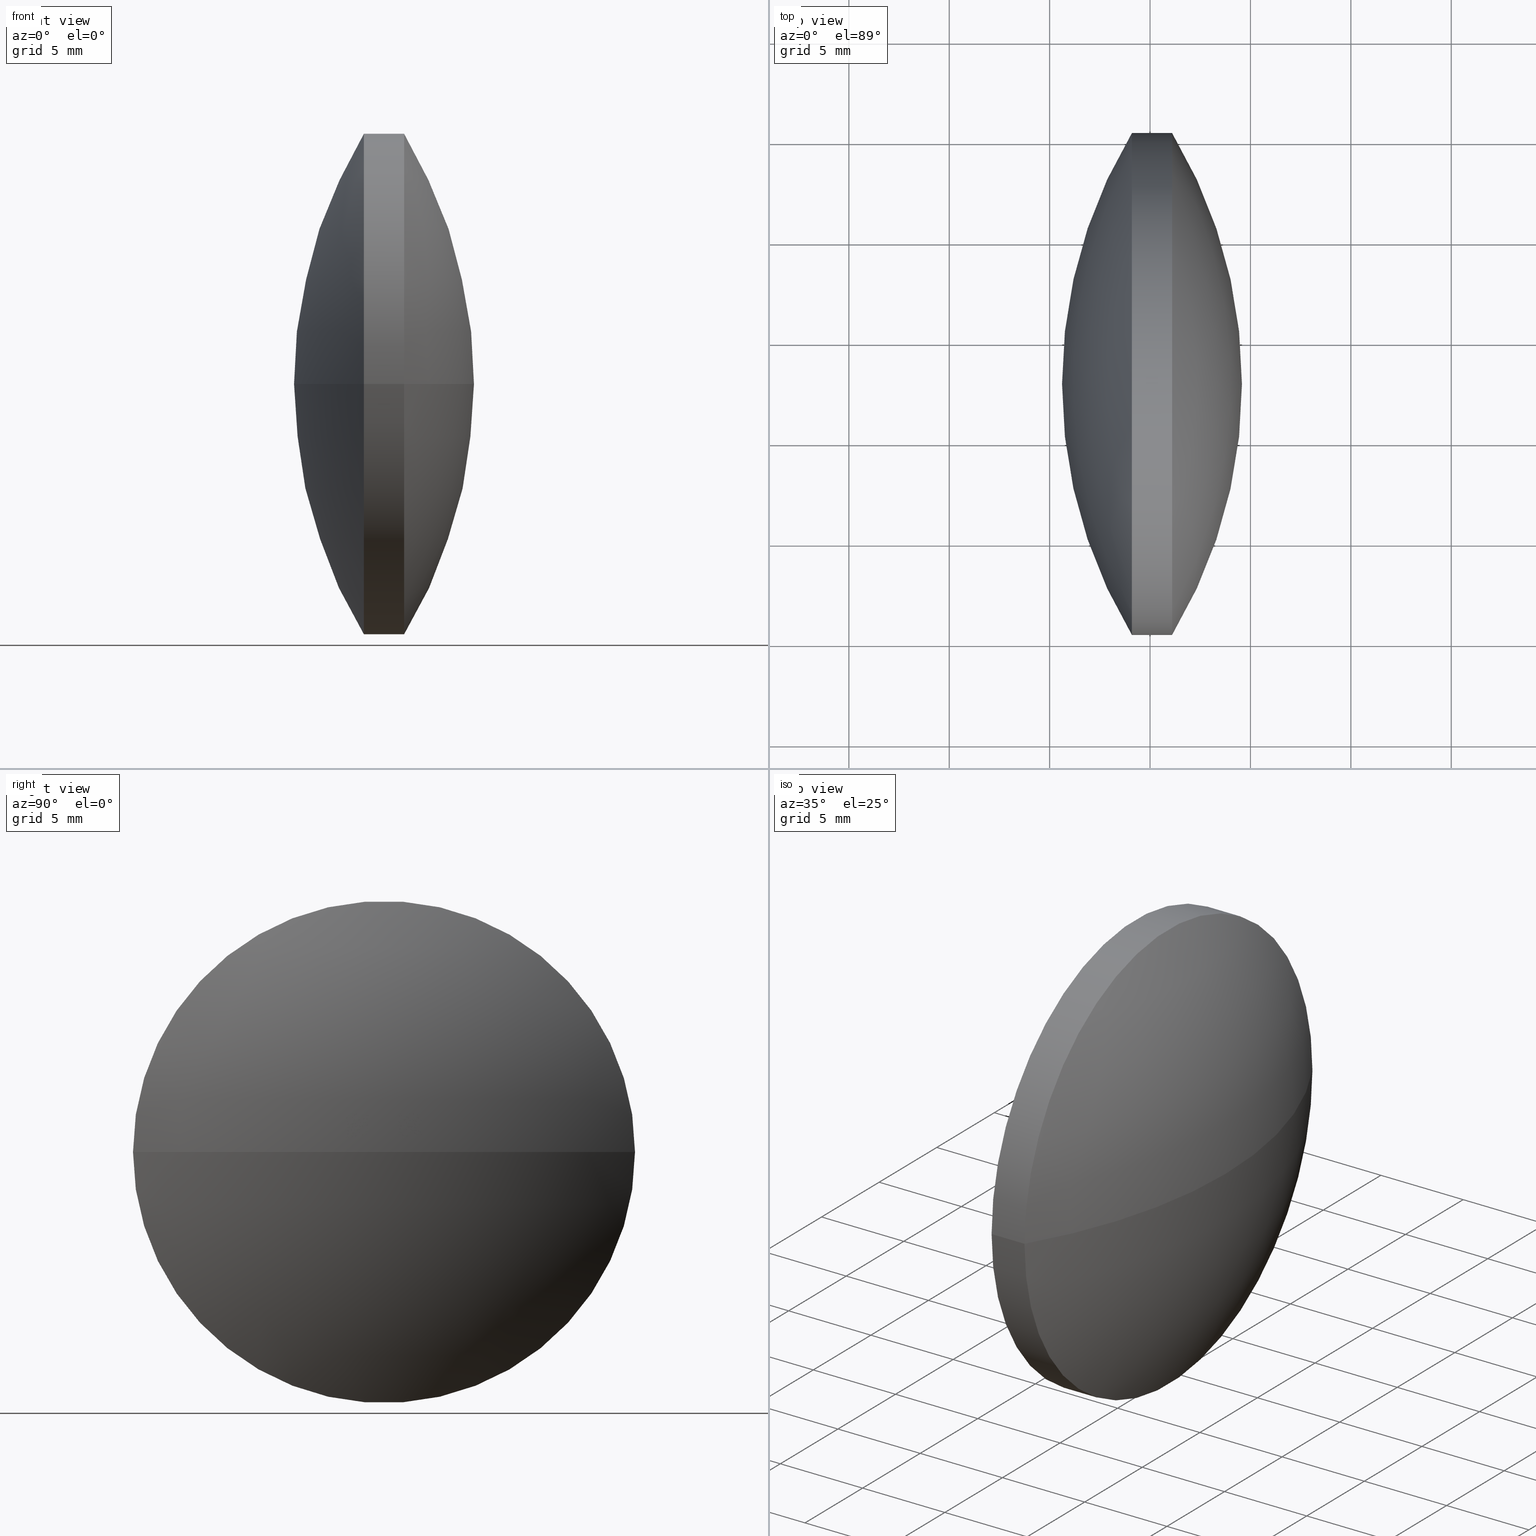
[diagram: canonical four-view strip — front | top / right | iso, engineering-drawing reading convention]
A machine part, canonical four-view strip (front | top / right | iso — engineering-drawing reading convention). The complete STEP part file that produces these views, byte-faithful:
ISO-10303-21;
HEADER;
FILE_DESCRIPTION (( 'STEP AP203' ),
    '1' );
FILE_NAME ('110016.STEP',
    '2019-06-25T05:55:41',
    ( '' ),
    ( '' ),
    'SwSTEP 2.0',
    'SolidWorks 2016',
    '' );
FILE_SCHEMA (( 'CONFIG_CONTROL_DESIGN' ));
ENDSEC;

DATA;
#1 = APPROVAL_ROLE ( '' ) ;
#2 = ADVANCED_FACE ( 'NONE', ( #23 ), #233, .T. ) ;
#3 = PRODUCT_DEFINITION ( 'δ֪', '', #25, #156 ) ;
#4 = APPROVAL_ROLE ( '' ) ;
#5 = CALENDAR_DATE ( 2019, 25, 6 ) ;
#6 = PERSON_AND_ORGANIZATION ( #239, #261 ) ;
#7 = ORIENTED_EDGE ( 'NONE', *, *, #198, .F. ) ;
#8 = ADVANCED_FACE ( 'NONE', ( #282 ), #161, .T. ) ;
#9 = LOCAL_TIME ( 13, 55, 41.00000000000000000, #32 ) ;
#10 = DIRECTION ( 'NONE',  ( 1.147412374197123200E-015, 1.000000000000000000, 0.0000000000000000000 ) ) ;
#11 = CIRCLE ( 'NONE', #292, 24.18971264367814200 ) ;
#12 = VERTEX_POINT ( 'NONE', #242 ) ;
#13 = PRODUCT_RELATED_PRODUCT_CATEGORY ( 'detail', '', ( #283 ) ) ;
#14 = DIRECTION ( 'NONE',  ( -1.000000000000000000, 1.426066712043499300E-015, -0.0000000000000000000 ) ) ;
#15 = DATE_AND_TIME ( #26, #153 ) ;
#16 = ORIENTED_EDGE ( 'NONE', *, *, #28, .T. ) ;
#17 = CC_DESIGN_APPROVAL ( #281, ( #99 ) ) ;
#18 = COORDINATED_UNIVERSAL_TIME_OFFSET ( 8, 0, .AHEAD. ) ;
#19 = PERSON_AND_ORGANIZATION ( #239, #261 ) ;
#20 = DATE_AND_TIME ( #185, #91 ) ;
#21 = PRODUCT_DEFINITION ( 'δ֪', '', #270, #155 ) ;
#22 = VERTEX_POINT ( 'NONE', #286 ) ;
#23 = FACE_OUTER_BOUND ( 'NONE', #172, .T. ) ;
#24 = APPROVAL_STATUS ( 'not_yet_approved' ) ;
#25 = PRODUCT_DEFINITION_FORMATION_WITH_SPECIFIED_SOURCE ( '�κ�', '', #146, .NOT_KNOWN. ) ;
#26 = CALENDAR_DATE ( 2019, 25, 6 ) ;
#27 = VECTOR ( 'NONE', #79, 1000.000000000000000 ) ;
#28 = EDGE_CURVE ( 'NONE', #243, #12, #36, .T. ) ;
#29 = PERSON_AND_ORGANIZATION_ROLE ( 'creator' ) ;
#30 = EDGE_CURVE ( 'NONE', #12, #98, #92, .T. ) ;
#31 = APPROVAL ( #24, 'δָ��' ) ;
#32 = COORDINATED_UNIVERSAL_TIME_OFFSET ( 8, 0, .AHEAD. ) ;
#33 = SPHERICAL_SURFACE ( 'NONE', #43, 24.18971264367814900 ) ;
#34 = DIRECTION ( 'NONE',  ( -1.000000000000000000, 1.426066712043499300E-015, -0.0000000000000000000 ) ) ;
#35 = PERSON_AND_ORGANIZATION ( #239, #261 ) ;
#36 = CIRCLE ( 'NONE', #298, 24.18971264367815600 ) ;
#37 = VERTEX_POINT ( 'NONE', #145 ) ;
#38 = DIRECTION ( 'NONE',  ( -1.110223024625159300E-015, -1.000000000000000000, 0.0000000000000000000 ) ) ;
#39 = CC_DESIGN_PERSON_AND_ORGANIZATION_ASSIGNMENT ( #274, #117, ( #270 ) ) ;
#40 = CARTESIAN_POINT ( 'NONE',  ( 104.8063600596842700, 47.85050494407929700, 0.0000000000000000000 ) ) ;
#41 = LOCAL_TIME ( 13, 55, 41.00000000000000000, #53 ) ;
#42 = VERTEX_POINT ( 'NONE', #218 ) ;
#43 = AXIS2_PLACEMENT_3D ( 'NONE', #244, #175, #245 ) ;
#44 = DIRECTION ( 'NONE',  ( 0.0000000000000000000, 0.0000000000000000000, 1.000000000000000000 ) ) ;
#45 = APPLICATION_PROTOCOL_DEFINITION ( 'international standard', 'config_control_design', 1994, #167 ) ;
#46 = CC_DESIGN_PERSON_AND_ORGANIZATION_ASSIGNMENT ( #271, #72, ( #25 ) ) ;
#47 = MECHANICAL_CONTEXT ( 'NONE', #255, 'mechanical' ) ;
#48 = DATE_TIME_ROLE ( 'classification_date' ) ;
#49 = LOCAL_TIME ( 13, 55, 41.00000000000000000, #293 ) ;
#50 = ADVANCED_FACE ( 'NONE', ( #268 ), #33, .T. ) ;
#51 = AXIS2_PLACEMENT_3D ( 'NONE', #123, #226, #288 ) ;
#52 = PERSON_AND_ORGANIZATION ( #239, #261 ) ;
#53 = COORDINATED_UNIVERSAL_TIME_OFFSET ( 8, 0, .AHEAD. ) ;
#54 = DIRECTION ( 'NONE',  ( 0.0000000000000000000, 0.0000000000000000000, -1.000000000000000000 ) ) ;
#55 = DIRECTION ( 'NONE',  ( 0.0000000000000000000, 1.000000000000000000, 1.224646799147352700E-016 ) ) ;
#56 = ORIENTED_EDGE ( 'NONE', *, *, #30, .F. ) ;
#57 = ORIENTED_EDGE ( 'NONE', *, *, #28, .F. ) ;
#58 = CARTESIAN_POINT ( 'NONE',  ( 76.62621286149057200, 47.85050494407931900, 0.0000000000000000000 ) ) ;
#59 = CC_DESIGN_DATE_AND_TIME_ASSIGNMENT ( #152, #48, ( #122 ) ) ;
#60 = DIRECTION ( 'NONE',  ( 1.746428034274661700E-031, 1.224646799147353200E-016, -1.000000000000000000 ) ) ;
#61 = PERSON_AND_ORGANIZATION ( #239, #261 ) ;
#62 = MANIFOLD_SOLID_BREP ( '��ת1', #196 ) ;
#63 = DIRECTION ( 'NONE',  ( 0.0000000000000000000, 0.0000000000000000000, 1.000000000000000000 ) ) ;
#64 = LOCAL_TIME ( 13, 55, 41.00000000000000000, #128 ) ;
#65 = AXIS2_PLACEMENT_3D ( 'NONE', #40, #54, #10 ) ;
#66 = ORIENTED_EDGE ( 'NONE', *, *, #238, .T. ) ;
#67 = CARTESIAN_POINT ( 'NONE',  ( 0.0000000000000000000, 0.0000000000000000000, 0.0000000000000000000 ) ) ;
#68 = DIRECTION ( 'NONE',  ( -1.000000000000000000, 1.426066712043499300E-015, -0.0000000000000000000 ) ) ;
#69 = PERSON_AND_ORGANIZATION_ROLE ( 'classification_officer' ) ;
#70 = PERSON_AND_ORGANIZATION_ROLE ( 'creator' ) ;
#71 = CC_DESIGN_PERSON_AND_ORGANIZATION_ASSIGNMENT ( #97, #173, ( #3 ) ) ;
#72 = PERSON_AND_ORGANIZATION_ROLE ( 'creator' ) ;
#73 = ADVANCED_FACE ( 'NONE', ( #154 ), #207, .T. ) ;
#74 = APPROVAL_STATUS ( 'not_yet_approved' ) ;
#75 = EDGE_LOOP ( 'NONE', ( #181, #143, #208, #130 ) ) ;
#76 = APPROVAL_STATUS ( 'not_yet_approved' ) ;
#77 = ADVANCED_FACE ( 'NONE', ( #126 ), #247, .T. ) ;
#78 = APPROVAL ( #74, 'δָ��' ) ;
#79 = DIRECTION ( 'NONE',  ( -1.000000000000000000, 1.426066712043499300E-015, -0.0000000000000000000 ) ) ;
#80 = APPROVAL_PERSON_ORGANIZATION ( #138, #281, #1 ) ;
#81 = CARTESIAN_POINT ( 'NONE',  ( 84.09664741600607800, 35.35050494407936100, -1.530808498934187000E-015 ) ) ;
#82 = ORIENTED_EDGE ( 'NONE', *, *, #238, .F. ) ;
#83 = APPROVAL_PERSON_ORGANIZATION ( #142, #177, #186 ) ;
#84 = CC_DESIGN_APPROVAL ( #78, ( #270 ) ) ;
#85 = DIRECTION ( 'NONE',  ( 1.147412374197123200E-015, 1.000000000000000000, 0.0000000000000000000 ) ) ;
#86 = PRODUCT_DEFINITION_SHAPE ( 'NONE', 'NONE',  #21 ) ;
#87 = EDGE_CURVE ( 'NONE', #22, #37, #211, .T. ) ;
#88 = PERSON_AND_ORGANIZATION ( #239, #261 ) ;
#89 = DIRECTION ( 'NONE',  ( 1.000000000000000000, 0.0000000000000000000, 0.0000000000000000000 ) ) ;
#90 = CC_DESIGN_DATE_AND_TIME_ASSIGNMENT ( #265, #263, ( #21 ) ) ;
#91 = LOCAL_TIME ( 13, 55, 41.00000000000000000, #18 ) ;
#92 = LINE ( 'NONE', #124, #27 ) ;
#93 = CARTESIAN_POINT ( 'NONE',  ( 84.09664741600609300, 47.85050494407930400, 0.0000000000000000000 ) ) ;
#94 =( GEOMETRIC_REPRESENTATION_CONTEXT ( 3 ) GLOBAL_UNCERTAINTY_ASSIGNED_CONTEXT ( ( #151 ) ) GLOBAL_UNIT_ASSIGNED_CONTEXT ( ( #111, #299, #133 ) ) REPRESENTATION_CONTEXT ( 'NONE', 'WORKASPACE' ) );
#95 = ORIENTED_EDGE ( 'NONE', *, *, #225, .T. ) ;
#96 = APPROVAL_STATUS ( 'not_yet_approved' ) ;
#97 = PERSON_AND_ORGANIZATION ( #239, #261 ) ;
#98 = VERTEX_POINT ( 'NONE', #81 ) ;
#99 = SECURITY_CLASSIFICATION ( '', '', #214 ) ;
#100 = LOCAL_TIME ( 13, 55, 41.00000000000000000, #273 ) ;
#101 = CARTESIAN_POINT ( 'NONE',  ( 76.62621286149058600, 60.35050494407928300, 1.530808498934187800E-015 ) ) ;
#102 = DATE_AND_TIME ( #5, #49 ) ;
#103 = CC_DESIGN_APPROVAL ( #31, ( #25 ) ) ;
#104 = DIRECTION ( 'NONE',  ( -1.110223024625159300E-015, -1.000000000000000000, 0.0000000000000000000 ) ) ;
#105 = LOCAL_TIME ( 13, 55, 41.00000000000000000, #129 ) ;
#106 = DIRECTION ( 'NONE',  ( 0.0000000000000000000, 1.000000000000000000, 1.224646799147353000E-016 ) ) ;
#107 = PRODUCT_RELATED_PRODUCT_CATEGORY ( 'detail', '', ( #146 ) ) ;
#108 = ORIENTED_EDGE ( 'NONE', *, *, #141, .F. ) ;
#109 = DATE_AND_TIME ( #249, #100 ) ;
#110 = ORIENTED_EDGE ( 'NONE', *, *, #87, .T. ) ;
#111 =( LENGTH_UNIT ( ) NAMED_UNIT ( * ) SI_UNIT ( .MILLI., .METRE. ) );
#112 = CC_DESIGN_PERSON_AND_ORGANIZATION_ASSIGNMENT ( #6, #277, ( #283 ) ) ;
#113 = DATE_AND_TIME ( #201, #179 ) ;
#114 = ADVANCED_BREP_SHAPE_REPRESENTATION ( '110016', ( #62, #203 ), #94 ) ;
#115 = PERSON_AND_ORGANIZATION_ROLE ( 'design_owner' ) ;
#116 = APPROVAL_PERSON_ORGANIZATION ( #35, #31, #191 ) ;
#117 = PERSON_AND_ORGANIZATION_ROLE ( 'design_supplier' ) ;
#118 = CC_DESIGN_PERSON_AND_ORGANIZATION_ASSIGNMENT ( #61, #115, ( #146 ) ) ;
#119 = PERSON_AND_ORGANIZATION_ROLE ( 'classification_officer' ) ;
#120 = SECURITY_CLASSIFICATION_LEVEL ( 'unclassified' ) ;
#121 = APPROVAL_DATE_TIME ( #15, #78 ) ;
#122 = SECURITY_CLASSIFICATION ( '', '', #120 ) ;
#123 = CARTESIAN_POINT ( 'NONE',  ( 65.38693477232793300, 47.85050494407931900, 0.0000000000000000000 ) ) ;
#124 = CARTESIAN_POINT ( 'NONE',  ( 76.62621286149055800, 35.35050494407934700, 0.0000000000000000000 ) ) ;
#125 = CALENDAR_DATE ( 2019, 25, 6 ) ;
#126 = FACE_OUTER_BOUND ( 'NONE', #215, .T. ) ;
#127 = EDGE_CURVE ( 'NONE', #22, #12, #202, .T. ) ;
#128 = COORDINATED_UNIVERSAL_TIME_OFFSET ( 8, 0, .AHEAD. ) ;
#129 = COORDINATED_UNIVERSAL_TIME_OFFSET ( 8, 0, .AHEAD. ) ;
#130 = ORIENTED_EDGE ( 'NONE', *, *, #206, .F. ) ;
#131 = CC_DESIGN_APPROVAL ( #177, ( #21 ) ) ;
#132 = CC_DESIGN_PERSON_AND_ORGANIZATION_ASSIGNMENT ( #19, #193, ( #25 ) ) ;
#133 =( NAMED_UNIT ( * ) SI_UNIT ( $, .STERADIAN. ) SOLID_ANGLE_UNIT ( ) );
#134 = SHAPE_DEFINITION_REPRESENTATION ( #217, #114 ) ;
#135 = CIRCLE ( 'NONE', #252, 24.18971264367814900 ) ;
#136 = DIRECTION ( 'NONE',  ( 1.000000000000000000, 0.0000000000000000000, 0.0000000000000000000 ) ) ;
#137 = APPROVAL_STATUS ( 'not_yet_approved' ) ;
#138 = PERSON_AND_ORGANIZATION ( #239, #261 ) ;
#139 = DATE_TIME_ROLE ( 'creation_date' ) ;
#140 = APPROVAL ( #236, 'δָ��' ) ;
#141 = EDGE_CURVE ( 'NONE', #98, #42, #135, .T. ) ;
#142 = PERSON_AND_ORGANIZATION ( #239, #261 ) ;
#143 = ORIENTED_EDGE ( 'NONE', *, *, #127, .T. ) ;
#144 = AXIS2_PLACEMENT_3D ( 'NONE', #158, #250, #200 ) ;
#145 = CARTESIAN_POINT ( 'NONE',  ( 84.09664741600610700, 60.35050494407926900, 0.0000000000000000000 ) ) ;
#146 = PRODUCT ( '110016', '110016', '', ( #47 ) ) ;
#147 = COORDINATED_UNIVERSAL_TIME_OFFSET ( 8, 0, .AHEAD. ) ;
#148 = DIRECTION ( 'NONE',  ( -1.000000000000000000, 1.426066712043499300E-015, -0.0000000000000000000 ) ) ;
#149 = FACE_OUTER_BOUND ( 'NONE', #75, .T. ) ;
#150 = ORIENTED_EDGE ( 'NONE', *, *, #127, .F. ) ;
#151 = UNCERTAINTY_MEASURE_WITH_UNIT (LENGTH_MEASURE( 1.000000000000000100E-005 ), #111, 'distance_accuracy_value', 'NONE');
#152 = DATE_AND_TIME ( #212, #157 ) ;
#153 = LOCAL_TIME ( 13, 55, 41.00000000000000000, #147 ) ;
#154 = FACE_OUTER_BOUND ( 'NONE', #253, .T. ) ;
#155 = DESIGN_CONTEXT ( 'detailed design', #167, 'design' ) ;
#156 = DESIGN_CONTEXT ( 'detailed design', #237, 'design' ) ;
#157 = LOCAL_TIME ( 13, 55, 41.00000000000000000, #275 ) ;
#158 = CARTESIAN_POINT ( 'NONE',  ( 86.09664741600609300, 47.85050494407930400, 0.0000000000000000000 ) ) ;
#159 = CIRCLE ( 'NONE', #163, 12.49999999999997000 ) ;
#160 = CC_DESIGN_APPROVAL ( #213, ( #122 ) ) ;
#161 = CYLINDRICAL_SURFACE ( 'NONE', #235, 12.49999999999997000 ) ;
#162 = DIRECTION ( 'NONE',  ( 1.000000000000000000, 0.0000000000000000000, 0.0000000000000000000 ) ) ;
#163 = AXIS2_PLACEMENT_3D ( 'NONE', #223, #34, #104 ) ;
#164 = CARTESIAN_POINT ( 'NONE',  ( 0.0000000000000000000, 0.0000000000000000000, 0.0000000000000000000 ) ) ;
#165 = EDGE_CURVE ( 'NONE', #243, #22, #11, .T. ) ;
#166 = APPLICATION_PROTOCOL_DEFINITION ( 'international standard', 'config_control_design', 1994, #300 ) ;
#167 = APPLICATION_CONTEXT ( 'configuration controlled 3d designs of mechanical parts and assemblies' ) ;
#168 = AXIS2_PLACEMENT_3D ( 'NONE', #183, #228, #89 ) ;
#169 = APPROVAL_DATE_TIME ( #227, #140 ) ;
#170 = DATE_TIME_ROLE ( 'classification_date' ) ;
#171 = CYLINDRICAL_SURFACE ( 'NONE', #176, 12.49999999999997000 ) ;
#172 = EDGE_LOOP ( 'NONE', ( #108, #66, #95 ) ) ;
#173 = PERSON_AND_ORGANIZATION_ROLE ( 'creator' ) ;
#174 = DATE_AND_TIME ( #184, #64 ) ;
#175 = DIRECTION ( 'NONE',  ( 0.0000000000000000000, 0.0000000000000000000, -1.000000000000000000 ) ) ;
#176 = AXIS2_PLACEMENT_3D ( 'NONE', #58, #68, #234 ) ;
#177 = APPROVAL ( #137, 'δָ��' ) ;
#178 = CC_DESIGN_DATE_AND_TIME_ASSIGNMENT ( #109, #139, ( #3 ) ) ;
#179 = LOCAL_TIME ( 13, 55, 41.00000000000000000, #210 ) ;
#180 = DIRECTION ( 'NONE',  ( 1.746428034274661700E-031, 1.224646799147353200E-016, -1.000000000000000000 ) ) ;
#181 = ORIENTED_EDGE ( 'NONE', *, *, #87, .F. ) ;
#182 = CARTESIAN_POINT ( 'NONE',  ( 104.8063600596842700, 47.85050494407929700, 0.0000000000000000000 ) ) ;
#183 = CARTESIAN_POINT ( 'NONE',  ( 104.8063600596842700, 47.85050494407929700, 0.0000000000000000000 ) ) ;
#184 = CALENDAR_DATE ( 2019, 25, 6 ) ;
#185 = CALENDAR_DATE ( 2019, 25, 6 ) ;
#186 = APPROVAL_ROLE ( '' ) ;
#187 = ORIENTED_EDGE ( 'NONE', *, *, #225, .F. ) ;
#188 = CC_DESIGN_PERSON_AND_ORGANIZATION_ASSIGNMENT ( #232, #70, ( #21 ) ) ;
#189 = ORIENTED_EDGE ( 'NONE', *, *, #198, .T. ) ;
#190 = CC_DESIGN_APPROVAL ( #140, ( #3 ) ) ;
#191 = APPROVAL_ROLE ( '' ) ;
#192 = EDGE_LOOP ( 'NONE', ( #262, #16, #150 ) ) ;
#193 = PERSON_AND_ORGANIZATION_ROLE ( 'design_supplier' ) ;
#194 = AXIS2_PLACEMENT_3D ( 'NONE', #93, #257, #258 ) ;
#195 = DATE_AND_TIME ( #272, #41 ) ;
#196 = CLOSED_SHELL ( 'NONE', ( #8, #50, #77, #2, #73, #264 ) ) ;
#197 = CC_DESIGN_PERSON_AND_ORGANIZATION_ASSIGNMENT ( #289, #119, ( #122 ) ) ;
#198 = EDGE_CURVE ( 'NONE', #12, #22, #159, .T. ) ;
#199 = DIRECTION ( 'NONE',  ( -1.110223024625159300E-015, -1.000000000000000000, 0.0000000000000000000 ) ) ;
#200 = DIRECTION ( 'NONE',  ( -1.110223024625159300E-015, -1.000000000000000000, 0.0000000000000000000 ) ) ;
#201 = CALENDAR_DATE ( 2019, 25, 6 ) ;
#202 = CIRCLE ( 'NONE', #144, 12.49999999999997000 ) ;
#203 = AXIS2_PLACEMENT_3D ( 'NONE', #67, #63, #136 ) ;
#204 = APPROVAL_PERSON_ORGANIZATION ( #52, #213, #304 ) ;
#205 = DIRECTION ( 'NONE',  ( 1.000000000000000000, 0.0000000000000000000, 0.0000000000000000000 ) ) ;
#206 = EDGE_CURVE ( 'NONE', #37, #98, #302, .T. ) ;
#207 = SPHERICAL_SURFACE ( 'NONE', #51, 24.18971264367814900 ) ;
#208 = ORIENTED_EDGE ( 'NONE', *, *, #30, .T. ) ;
#209 = CC_DESIGN_PERSON_AND_ORGANIZATION_ASSIGNMENT ( #256, #69, ( #99 ) ) ;
#210 = COORDINATED_UNIVERSAL_TIME_OFFSET ( 8, 0, .AHEAD. ) ;
#211 = LINE ( 'NONE', #101, #266 ) ;
#212 = CALENDAR_DATE ( 2019, 25, 6 ) ;
#213 = APPROVAL ( #76, 'δָ��' ) ;
#214 = SECURITY_CLASSIFICATION_LEVEL ( 'unclassified' ) ;
#215 = EDGE_LOOP ( 'NONE', ( #276, #303, #187 ) ) ;
#216 = APPLICATION_PROTOCOL_DEFINITION ( 'international standard', 'config_control_design', 1994, #255 ) ;
#217 = PRODUCT_DEFINITION_SHAPE ( 'NONE', 'NONE',  #3 ) ;
#218 = CARTESIAN_POINT ( 'NONE',  ( 80.61664741600613100, 47.85050494407933300, 0.0000000000000000000 ) ) ;
#219 = CARTESIAN_POINT ( 'NONE',  ( 76.62621286149057200, 47.85050494407931900, 0.0000000000000000000 ) ) ;
#220 = EDGE_LOOP ( 'NONE', ( #189, #110, #82, #56 ) ) ;
#221 = CC_DESIGN_PERSON_AND_ORGANIZATION_ASSIGNMENT ( #88, #29, ( #270 ) ) ;
#222 = AXIS2_PLACEMENT_3D ( 'NONE', #267, #287, #85 ) ;
#223 = CARTESIAN_POINT ( 'NONE',  ( 86.09664741600609300, 47.85050494407930400, 0.0000000000000000000 ) ) ;
#224 = APPROVAL_DATE_TIME ( #102, #31 ) ;
#225 = EDGE_CURVE ( 'NONE', #37, #42, #279, .T. ) ;
#226 = DIRECTION ( 'NONE',  ( 0.0000000000000000000, 0.0000000000000000000, -1.000000000000000000 ) ) ;
#227 = DATE_AND_TIME ( #285, #105 ) ;
#228 = DIRECTION ( 'NONE',  ( 0.0000000000000000000, 0.0000000000000000000, 1.000000000000000000 ) ) ;
#229 = CARTESIAN_POINT ( 'NONE',  ( 89.57664741600606800, 47.85050494407928300, 0.0000000000000000000 ) ) ;
#230 = AXIS2_PLACEMENT_3D ( 'NONE', #291, #14, #38 ) ;
#231 = APPROVAL_DATE_TIME ( #174, #213 ) ;
#232 = PERSON_AND_ORGANIZATION ( #239, #261 ) ;
#233 = SPHERICAL_SURFACE ( 'NONE', #65, 24.18971264367814900 ) ;
#234 = DIRECTION ( 'NONE',  ( -1.110223024625159300E-015, -1.000000000000000000, 0.0000000000000000000 ) ) ;
#235 = AXIS2_PLACEMENT_3D ( 'NONE', #219, #269, #199 ) ;
#236 = APPROVAL_STATUS ( 'not_yet_approved' ) ;
#237 = APPLICATION_CONTEXT ( 'configuration controlled 3d designs of mechanical parts and assemblies' ) ;
#238 = EDGE_CURVE ( 'NONE', #98, #37, #290, .T. ) ;
#239 = PERSON ( 'δָ��', 'δָ��', 'δָ��', ('δָ��'), ('δָ��'), ('δָ��') ) ;
#240 = PERSON_AND_ORGANIZATION ( #239, #261 ) ;
#241 = CC_DESIGN_DATE_AND_TIME_ASSIGNMENT ( #113, #170, ( #99 ) ) ;
#242 = CARTESIAN_POINT ( 'NONE',  ( 86.09664741600606400, 35.35050494407931900, -1.530808498934187200E-015 ) ) ;
#243 = VERTEX_POINT ( 'NONE', #229 ) ;
#244 = CARTESIAN_POINT ( 'NONE',  ( 65.38693477232793300, 47.85050494407931900, 0.0000000000000000000 ) ) ;
#245 = DIRECTION ( 'NONE',  ( 1.147412374197122800E-015, 1.000000000000000000, 0.0000000000000000000 ) ) ;
#246 = APPROVAL_PERSON_ORGANIZATION ( #305, #140, #4 ) ;
#247 = SPHERICAL_SURFACE ( 'NONE', #222, 24.18971264367814900 ) ;
#248 = CC_DESIGN_SECURITY_CLASSIFICATION ( #122, ( #25 ) ) ;
#249 = CALENDAR_DATE ( 2019, 25, 6 ) ;
#250 = DIRECTION ( 'NONE',  ( -1.000000000000000000, 1.426066712043499300E-015, -0.0000000000000000000 ) ) ;
#251 = CARTESIAN_POINT ( 'NONE',  ( 65.38693477232793300, 47.85050494407931900, 0.0000000000000000000 ) ) ;
#252 = AXIS2_PLACEMENT_3D ( 'NONE', #182, #60, #106 ) ;
#253 = EDGE_LOOP ( 'NONE', ( #57, #297, #7 ) ) ;
#254 = MECHANICAL_CONTEXT ( 'NONE', #300, 'mechanical' ) ;
#255 = APPLICATION_CONTEXT ( 'configuration controlled 3d designs of mechanical parts and assemblies' ) ;
#256 = PERSON_AND_ORGANIZATION ( #239, #261 ) ;
#257 = DIRECTION ( 'NONE',  ( -1.000000000000000000, 1.426066712043499300E-015, -0.0000000000000000000 ) ) ;
#258 = DIRECTION ( 'NONE',  ( -1.110223024625159300E-015, -1.000000000000000000, 0.0000000000000000000 ) ) ;
#259 = AXIS2_PLACEMENT_3D ( 'NONE', #164, #44, #205 ) ;
#260 = APPLICATION_PROTOCOL_DEFINITION ( 'international standard', 'config_control_design', 1994, #237 ) ;
#261 = ORGANIZATION ( 'δָ��', 'δָ��', '' ) ;
#262 = ORIENTED_EDGE ( 'NONE', *, *, #165, .F. ) ;
#263 = DATE_TIME_ROLE ( 'creation_date' ) ;
#264 = ADVANCED_FACE ( 'NONE', ( #149 ), #171, .T. ) ;
#265 = DATE_AND_TIME ( #125, #9 ) ;
#266 = VECTOR ( 'NONE', #148, 1000.000000000000000 ) ;
#267 = CARTESIAN_POINT ( 'NONE',  ( 104.8063600596842700, 47.85050494407929700, 0.0000000000000000000 ) ) ;
#268 = FACE_OUTER_BOUND ( 'NONE', #192, .T. ) ;
#269 = DIRECTION ( 'NONE',  ( -1.000000000000000000, 1.426066712043499300E-015, -0.0000000000000000000 ) ) ;
#270 = PRODUCT_DEFINITION_FORMATION_WITH_SPECIFIED_SOURCE ( '�κ�', '', #283, .NOT_KNOWN. ) ;
#271 = PERSON_AND_ORGANIZATION ( #239, #261 ) ;
#272 = CALENDAR_DATE ( 2019, 25, 6 ) ;
#273 = COORDINATED_UNIVERSAL_TIME_OFFSET ( 8, 0, .AHEAD. ) ;
#274 = PERSON_AND_ORGANIZATION ( #239, #261 ) ;
#275 = COORDINATED_UNIVERSAL_TIME_OFFSET ( 8, 0, .AHEAD. ) ;
#276 = ORIENTED_EDGE ( 'NONE', *, *, #206, .T. ) ;
#277 = PERSON_AND_ORGANIZATION_ROLE ( 'design_owner' ) ;
#278 = APPROVAL_PERSON_ORGANIZATION ( #240, #78, #280 ) ;
#279 = CIRCLE ( 'NONE', #168, 24.18971264367814200 ) ;
#280 = APPROVAL_ROLE ( '' ) ;
#281 = APPROVAL ( #96, 'δָ��' ) ;
#282 = FACE_OUTER_BOUND ( 'NONE', #220, .T. ) ;
#283 = PRODUCT ( '110016', '110016', '', ( #254 ) ) ;
#284 = CC_DESIGN_SECURITY_CLASSIFICATION ( #99, ( #270 ) ) ;
#285 = CALENDAR_DATE ( 2019, 25, 6 ) ;
#286 = CARTESIAN_POINT ( 'NONE',  ( 86.09664741600610700, 60.35050494407926900, 0.0000000000000000000 ) ) ;
#287 = DIRECTION ( 'NONE',  ( 0.0000000000000000000, 0.0000000000000000000, -1.000000000000000000 ) ) ;
#288 = DIRECTION ( 'NONE',  ( 1.147412374197122800E-015, 1.000000000000000000, 0.0000000000000000000 ) ) ;
#289 = PERSON_AND_ORGANIZATION ( #239, #261 ) ;
#290 = CIRCLE ( 'NONE', #194, 12.49999999999997000 ) ;
#291 = CARTESIAN_POINT ( 'NONE',  ( 84.09664741600609300, 47.85050494407930400, 0.0000000000000000000 ) ) ;
#292 = AXIS2_PLACEMENT_3D ( 'NONE', #251, #296, #162 ) ;
#293 = COORDINATED_UNIVERSAL_TIME_OFFSET ( 8, 0, .AHEAD. ) ;
#294 = CARTESIAN_POINT ( 'NONE',  ( 65.38693477232793300, 47.85050494407931900, 0.0000000000000000000 ) ) ;
#295 = APPROVAL_DATE_TIME ( #195, #281 ) ;
#296 = DIRECTION ( 'NONE',  ( 0.0000000000000000000, 0.0000000000000000000, 1.000000000000000000 ) ) ;
#297 = ORIENTED_EDGE ( 'NONE', *, *, #165, .T. ) ;
#298 = AXIS2_PLACEMENT_3D ( 'NONE', #294, #180, #55 ) ;
#299 =( NAMED_UNIT ( * ) PLANE_ANGLE_UNIT ( ) SI_UNIT ( $, .RADIAN. ) );
#300 = APPLICATION_CONTEXT ( 'configuration controlled 3d designs of mechanical parts and assemblies' ) ;
#301 = APPROVAL_DATE_TIME ( #20, #177 ) ;
#302 = CIRCLE ( 'NONE', #230, 12.49999999999997000 ) ;
#303 = ORIENTED_EDGE ( 'NONE', *, *, #141, .T. ) ;
#304 = APPROVAL_ROLE ( '' ) ;
#305 = PERSON_AND_ORGANIZATION ( #239, #261 ) ;
ENDSEC;
END-ISO-10303-21;
